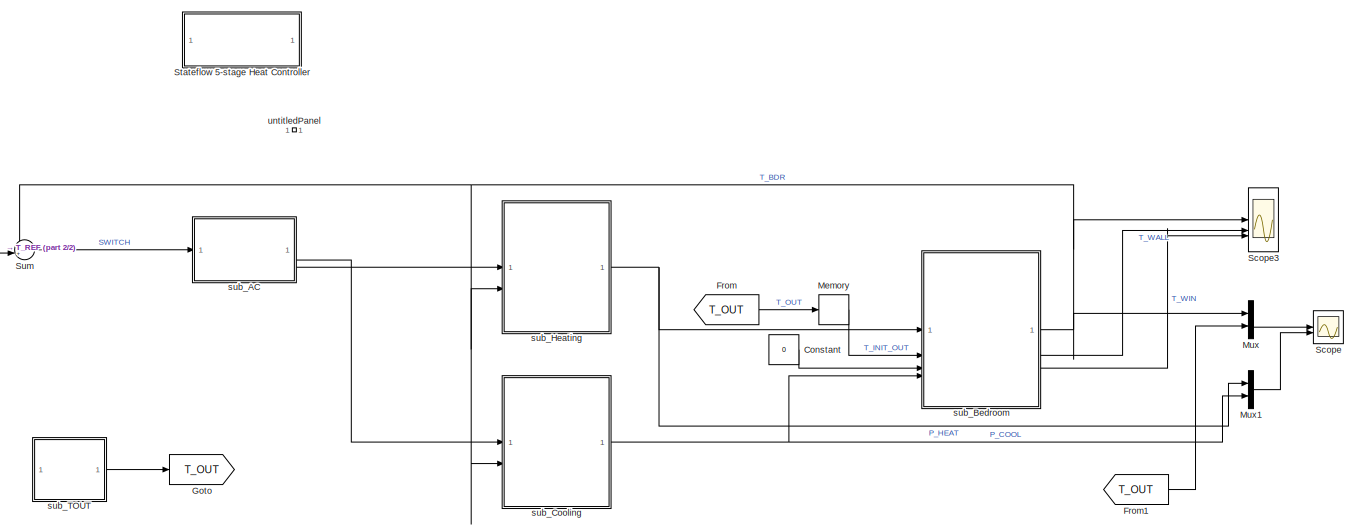
[diagram: root canvas - part 1/2, most of the canvas]
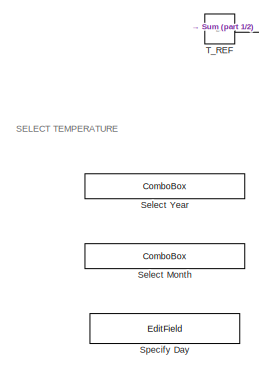
[diagram: root canvas - part 2/2, bottom left region]
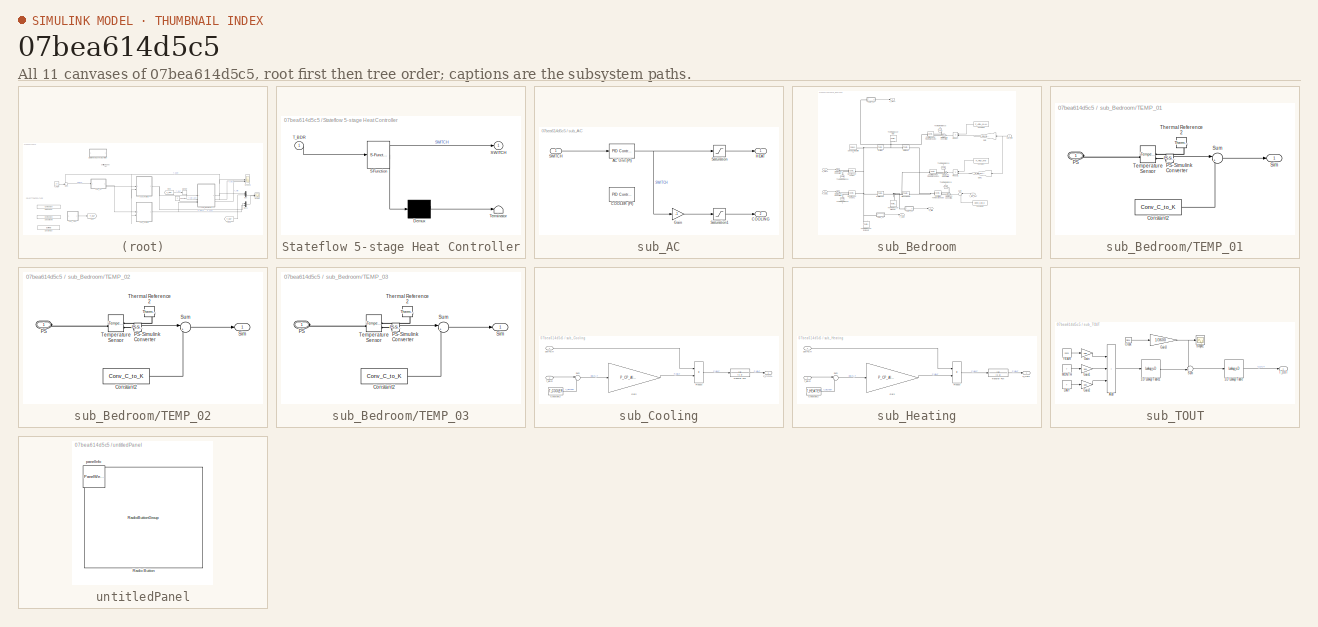
[diagram: thumbnail index - all 11 canvases of the model, root first then tree order]
MODEL slx_07bea614d5c5
KIND model
CONFIG AbsTol = auto
CONFIG EnableMultiTasking = off
CONFIG FixedStep = 1
CONFIG InitFcn = PARAMETERS;
CONFIG MaxStep = auto
CONFIG MinStep = auto
CONFIG RelTol = 1e-3
CONFIG SampleTimeConstraint = Unconstrained
CONFIG SolverName = ode5
CONFIG StartFcn = PARAMETERS;
CONFIG StartTime = 0.0
CONFIG StopTime = 3600*24*7
BLOCK [Constant] Constant
  Value = 0
BLOCK [From] From
  GotoTag = T_OUT
BLOCK [From] From1
  GotoTag = T_OUT
BLOCK [Goto] Goto
  GotoTag = T_OUT
BLOCK [Memory] Memory
  InitialCondition = T_INIT_OUT
BLOCK [Mux] Mux
  DisplayOption = bar
  Inputs = 2
BLOCK [Mux] Mux1
  DisplayOption = bar
  Inputs = 2
BLOCK [Scope] Scope
  Floating = off
  NumInputPorts = 2
  ScopeSpecificationString = Simulink.scopes.TimeScopeBlockCfg('CurrentConfiguration', extmgr.ConfigurationSet(extmgr.Configuration('Core','General UI',true),extmgr.Configuration('Core','Source UI',true),extmgr.Configuration('Sources','WiredSimulink',true),extmgr.Configuration('Visuals','Time Domain',true,'SerializedDisplays',{struct('MinYLimReal','6.8625','MaxYLimReal','32.2375','YLabelReal','','MinYLimMag','6.8625','MaxYLim...<+2086ch>
BLOCK [Scope] Scope3
  Floating = off
  NumInputPorts = 3
  ScopeSpecificationString = Simulink.scopes.TimeScopeBlockCfg('CurrentConfiguration', extmgr.ConfigurationSet(extmgr.Configuration('Core','General UI',true),extmgr.Configuration('Core','Source UI',true),extmgr.Configuration('Sources','WiredSimulink',true,'DataLoggingVariableName','ScopeData3'),extmgr.Configuration('Visuals','Time Domain',true,'SerializedDisplays',{struct('MinYLimReal','14.33567','MaxYLimReal','23.79337','YLa...<+1440ch>
BLOCK [ComboBox] Select Month
  LabelPosition = Hide
  NameLocation = top
  SelectedLabel = July
BLOCK [ComboBox] Select Year
  LabelPosition = Hide
  NameLocation = top
  SelectedLabel = 2023
BLOCK [EditField] Specify Day
  Alignment = Center
  LabelPosition = Hide
  NameLocation = top
  ShowInitialText = on
BLOCK [SubSystem] Stateflow 5-stage Heat Controller
  Commented = on
  ErrorFcn = Stateflow.Translate.translate
  PermitHierarchicalResolution = ExplicitOnly
  SFBlockType = Chart
  TreatAsAtomicUnit = on
BLOCK [Demux] Stateflow 5-stage Heat Controller/ Demux 
  Outputs = 1
BLOCK [S-Function] Stateflow 5-stage Heat Controller/ SFunction 
  EnableBusSupport = on
  FunctionName = sf_sfun
  PortCounts = [1 2]
  SFcnIsStateOwnerBlock = off
  SFunctionDeploymentMode = off
  Tag = Stateflow S-Function 1
BLOCK [Terminator] Stateflow 5-stage Heat Controller/ Terminator 
BLOCK [Outport] Stateflow 5-stage Heat Controller/SWITCH
BLOCK [Inport] Stateflow 5-stage Heat Controller/T_BDR
BLOCK [Sum] Sum
  Inputs = -+|
BLOCK [Constant] T_REF
  Value = 20
BLOCK [SubSystem] sub_AC
BLOCK [Reference] sub_AC/AC Unit (PI)  REF=slpidlib/PID Controller
  LibrarySourceBlock = simulink/Continuous/PID Controller
  SourceBlock = slpidlib/PID Controller
  SourceType = PID 1dof
BLOCK [Reference] sub_AC/COOLER (PI)  REF=slpidlib/PID Controller
  Commented = on
  LibrarySourceBlock = simulink/Continuous/PID Controller
  SourceBlock = slpidlib/PID Controller
  SourceType = PID 1dof
BLOCK [Outport] sub_AC/COOLING
  Port = 2
BLOCK [Gain] sub_AC/Gain
  Gain = -1
BLOCK [Outport] sub_AC/HEAT
BLOCK [Inport] sub_AC/SWITCH
BLOCK [Saturate] sub_AC/Saturation
  LowerLimit = 0
  UpperLimit = 1
BLOCK [Saturate] sub_AC/Saturation1
  LowerLimit = 0
  UpperLimit = 1
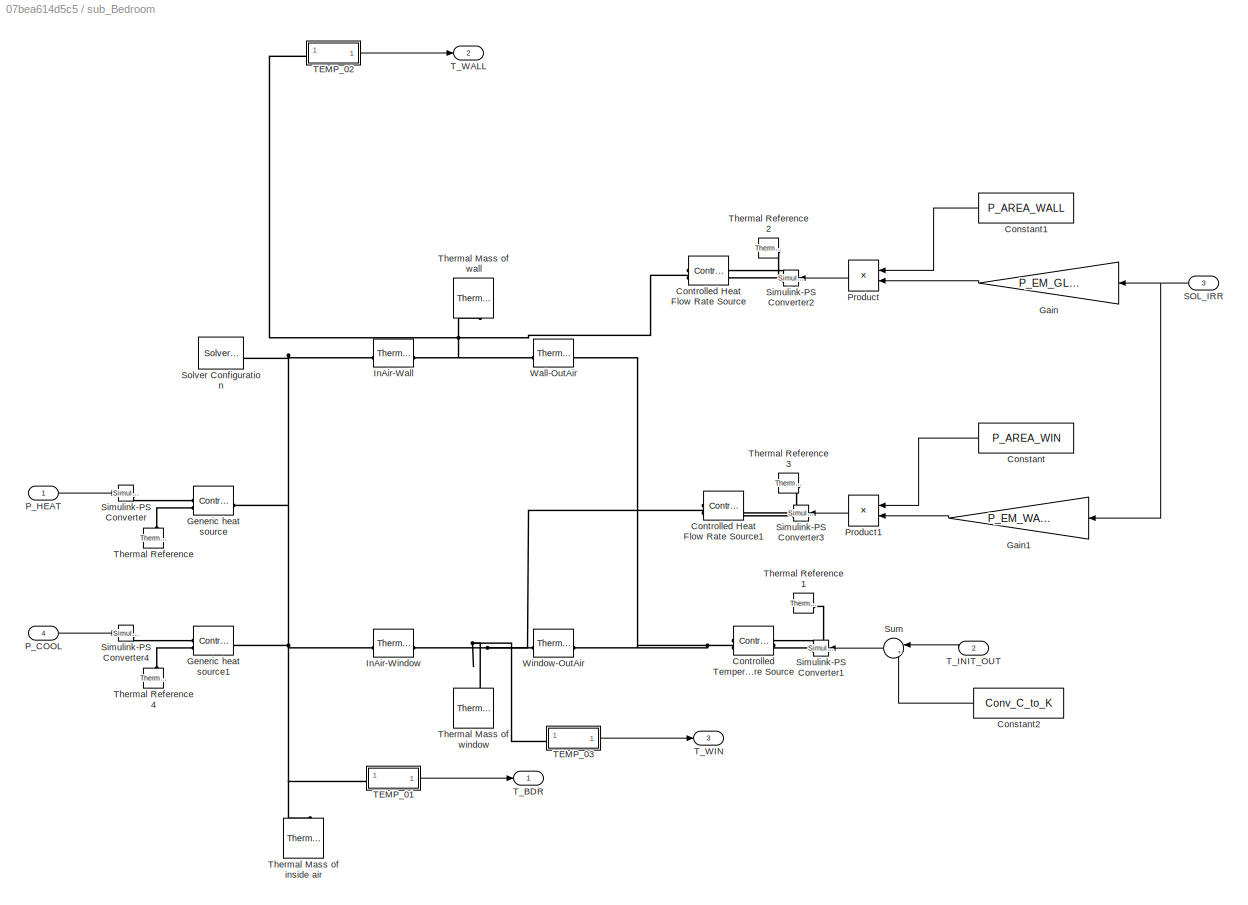
BLOCK [SubSystem] sub_Bedroom
BLOCK [Constant] sub_Bedroom/Constant
  NameLocation = top
  Value = P_AREA_WIN
BLOCK [Constant] sub_Bedroom/Constant1
  NameLocation = top
  Value = P_AREA_WALL
BLOCK [Constant] sub_Bedroom/Constant2
  NameLocation = top
  Value = Conv_C_to_K
BLOCK [Reference] sub_Bedroom/Controlled Heat Flow Rate Source  REF=fl_lib/Thermal/Thermal Sources/Controlled Heat Flow
Rate Source
  NameLocation = top
  SourceBlock = fl_lib/Thermal/Thermal Sources/Controlled Heat Flow\nRate Source
  SourceType = Controlled Heat Flow\nRate Source
BLOCK [Reference] sub_Bedroom/Controlled Heat Flow Rate Source1  REF=fl_lib/Thermal/Thermal Sources/Controlled Heat Flow
Rate Source
  NameLocation = top
  SourceBlock = fl_lib/Thermal/Thermal Sources/Controlled Heat Flow\nRate Source
  SourceType = Controlled Heat Flow\nRate Source
BLOCK [Reference] sub_Bedroom/Controlled Temperature Source  REF=fl_lib/Thermal/Thermal Sources/Controlled
Temperature Source
  NameLocation = top
  SourceBlock = fl_lib/Thermal/Thermal Sources/Controlled\nTemperature Source
  SourceType = Controlled\nTemperature Source
BLOCK [Gain] sub_Bedroom/Gain
  Gain = P_EM_GLASS
  NameLocation = top
BLOCK [Gain] sub_Bedroom/Gain1
  Gain = P_EM_WALL
  NameLocation = top
BLOCK [Reference] sub_Bedroom/Generic heat source  REF=fl_lib/Thermal/Thermal Sources/Controlled Heat Flow
Rate Source
  SourceBlock = fl_lib/Thermal/Thermal Sources/Controlled Heat Flow\nRate Source
  SourceType = Controlled Heat Flow\nRate Source
BLOCK [Reference] sub_Bedroom/Generic heat source1  REF=fl_lib/Thermal/Thermal Sources/Controlled Heat Flow
Rate Source
  SourceBlock = fl_lib/Thermal/Thermal Sources/Controlled Heat Flow\nRate Source
  SourceType = Controlled Heat Flow\nRate Source
BLOCK [Reference] sub_Bedroom/InAir-Wall  REF=fl_lib/Thermal/Thermal Elements/Thermal Resistance
  SourceBlock = fl_lib/Thermal/Thermal Elements/Thermal Resistance
  SourceType = Thermal Resistance
BLOCK [Reference] sub_Bedroom/InAir-Window  REF=fl_lib/Thermal/Thermal Elements/Thermal Resistance
  SourceBlock = fl_lib/Thermal/Thermal Elements/Thermal Resistance
  SourceType = Thermal Resistance
BLOCK [Inport] sub_Bedroom/P_COOL
  Port = 4
BLOCK [Inport] sub_Bedroom/P_HEAT
BLOCK [Product] sub_Bedroom/Product
  NameLocation = top
BLOCK [Product] sub_Bedroom/Product1
  NameLocation = top
BLOCK [Inport] sub_Bedroom/SOL_IRR
  Port = 3
BLOCK [Reference] sub_Bedroom/Simulink-PS Converter  REF=nesl_utility/Simulink-PS
Converter
  SourceBlock = nesl_utility/Simulink-PS\nConverter
  SourceType = Simulink-PS\nConverter
BLOCK [Reference] sub_Bedroom/Simulink-PS Converter1  REF=nesl_utility/Simulink-PS
Converter
  NameLocation = top
  SourceBlock = nesl_utility/Simulink-PS\nConverter
  SourceType = Simulink-PS\nConverter
BLOCK [Reference] sub_Bedroom/Simulink-PS Converter2  REF=nesl_utility/Simulink-PS
Converter
  NameLocation = top
  SourceBlock = nesl_utility/Simulink-PS\nConverter
  SourceType = Simulink-PS\nConverter
BLOCK [Reference] sub_Bedroom/Simulink-PS Converter3  REF=nesl_utility/Simulink-PS
Converter
  NameLocation = top
  SourceBlock = nesl_utility/Simulink-PS\nConverter
  SourceType = Simulink-PS\nConverter
BLOCK [Reference] sub_Bedroom/Simulink-PS Converter4  REF=nesl_utility/Simulink-PS
Converter
  SourceBlock = nesl_utility/Simulink-PS\nConverter
  SourceType = Simulink-PS\nConverter
BLOCK [Reference] sub_Bedroom/Solver Configuration  REF=nesl_utility/Solver
Configuration
  SourceBlock = nesl_utility/Solver\nConfiguration
  SourceType = Solver\nConfiguration
BLOCK [Sum] sub_Bedroom/Sum
  Inputs = |++
  NameLocation = top
BLOCK [SubSystem] sub_Bedroom/TEMP_01
BLOCK [Constant] sub_Bedroom/TEMP_01/Constant2
  Value = Conv_C_to_K
BLOCK [PMIOPort] sub_Bedroom/TEMP_01/PS
  Side = Left
BLOCK [Reference] sub_Bedroom/TEMP_01/PS-Simulink Converter  REF=nesl_utility/PS-Simulink
Converter
  SourceBlock = nesl_utility/PS-Simulink\nConverter
  SourceType = PS-Simulink\nConverter
BLOCK [Outport] sub_Bedroom/TEMP_01/Sim
BLOCK [Sum] sub_Bedroom/TEMP_01/Sum
  Inputs = |+-
BLOCK [Reference] sub_Bedroom/TEMP_01/Temperature Sensor  REF=fl_lib/Thermal/Thermal Sensors/Temperature Sensor
  SourceBlock = fl_lib/Thermal/Thermal Sensors/Temperature Sensor
  SourceType = Temperature Sensor
BLOCK [Reference] sub_Bedroom/TEMP_01/Thermal Reference2  REF=fl_lib/Thermal/Thermal Elements/Thermal Reference
  NameLocation = top
  SourceBlock = fl_lib/Thermal/Thermal Elements/Thermal Reference
  SourceType = Thermal Reference
BLOCK [SubSystem] sub_Bedroom/TEMP_02
BLOCK [Constant] sub_Bedroom/TEMP_02/Constant2
  Value = Conv_C_to_K
BLOCK [PMIOPort] sub_Bedroom/TEMP_02/PS
  Side = Left
BLOCK [Reference] sub_Bedroom/TEMP_02/PS-Simulink Converter  REF=nesl_utility/PS-Simulink
Converter
  SourceBlock = nesl_utility/PS-Simulink\nConverter
  SourceType = PS-Simulink\nConverter
BLOCK [Outport] sub_Bedroom/TEMP_02/Sim
BLOCK [Sum] sub_Bedroom/TEMP_02/Sum
  Inputs = |+-
BLOCK [Reference] sub_Bedroom/TEMP_02/Temperature Sensor  REF=fl_lib/Thermal/Thermal Sensors/Temperature Sensor
  SourceBlock = fl_lib/Thermal/Thermal Sensors/Temperature Sensor
  SourceType = Temperature Sensor
BLOCK [Reference] sub_Bedroom/TEMP_02/Thermal Reference2  REF=fl_lib/Thermal/Thermal Elements/Thermal Reference
  NameLocation = top
  SourceBlock = fl_lib/Thermal/Thermal Elements/Thermal Reference
  SourceType = Thermal Reference
BLOCK [SubSystem] sub_Bedroom/TEMP_03
BLOCK [Constant] sub_Bedroom/TEMP_03/Constant2
  Value = Conv_C_to_K
BLOCK [PMIOPort] sub_Bedroom/TEMP_03/PS
  Side = Left
BLOCK [Reference] sub_Bedroom/TEMP_03/PS-Simulink Converter  REF=nesl_utility/PS-Simulink
Converter
  SourceBlock = nesl_utility/PS-Simulink\nConverter
  SourceType = PS-Simulink\nConverter
BLOCK [Outport] sub_Bedroom/TEMP_03/Sim
BLOCK [Sum] sub_Bedroom/TEMP_03/Sum
  Inputs = |+-
BLOCK [Reference] sub_Bedroom/TEMP_03/Temperature Sensor  REF=fl_lib/Thermal/Thermal Sensors/Temperature Sensor
  SourceBlock = fl_lib/Thermal/Thermal Sensors/Temperature Sensor
  SourceType = Temperature Sensor
BLOCK [Reference] sub_Bedroom/TEMP_03/Thermal Reference2  REF=fl_lib/Thermal/Thermal Elements/Thermal Reference
  NameLocation = top
  SourceBlock = fl_lib/Thermal/Thermal Elements/Thermal Reference
  SourceType = Thermal Reference
BLOCK [Outport] sub_Bedroom/T_BDR
BLOCK [Inport] sub_Bedroom/T_INIT_OUT
  Port = 2
BLOCK [Outport] sub_Bedroom/T_WALL
  Port = 2
BLOCK [Outport] sub_Bedroom/T_WIN
  Port = 3
BLOCK [Reference] sub_Bedroom/Thermal Mass of inside air  REF=fl_lib/Thermal/Thermal Elements/Thermal Mass
  SourceBlock = fl_lib/Thermal/Thermal Elements/Thermal Mass
  SourceType = Thermal Mass
BLOCK [Reference] sub_Bedroom/Thermal Mass of wall  REF=fl_lib/Thermal/Thermal Elements/Thermal Mass
  NameLocation = top
  SourceBlock = fl_lib/Thermal/Thermal Elements/Thermal Mass
  SourceType = Thermal Mass
BLOCK [Reference] sub_Bedroom/Thermal Mass of window  REF=fl_lib/Thermal/Thermal Elements/Thermal Mass
  SourceBlock = fl_lib/Thermal/Thermal Elements/Thermal Mass
  SourceType = Thermal Mass
BLOCK [Reference] sub_Bedroom/Thermal Reference  REF=fl_lib/Thermal/Thermal Elements/Thermal Reference
  NameLocation = right
  SourceBlock = fl_lib/Thermal/Thermal Elements/Thermal Reference
  SourceType = Thermal Reference
BLOCK [Reference] sub_Bedroom/Thermal Reference1  REF=fl_lib/Thermal/Thermal Elements/Thermal Reference
  NameLocation = top
  SourceBlock = fl_lib/Thermal/Thermal Elements/Thermal Reference
  SourceType = Thermal Reference
BLOCK [Reference] sub_Bedroom/Thermal Reference2  REF=fl_lib/Thermal/Thermal Elements/Thermal Reference
  NameLocation = top
  SourceBlock = fl_lib/Thermal/Thermal Elements/Thermal Reference
  SourceType = Thermal Reference
BLOCK [Reference] sub_Bedroom/Thermal Reference3  REF=fl_lib/Thermal/Thermal Elements/Thermal Reference
  NameLocation = top
  SourceBlock = fl_lib/Thermal/Thermal Elements/Thermal Reference
  SourceType = Thermal Reference
BLOCK [Reference] sub_Bedroom/Thermal Reference4  REF=fl_lib/Thermal/Thermal Elements/Thermal Reference
  NameLocation = right
  SourceBlock = fl_lib/Thermal/Thermal Elements/Thermal Reference
  SourceType = Thermal Reference
BLOCK [Reference] sub_Bedroom/Wall-OutAir  REF=fl_lib/Thermal/Thermal Elements/Thermal Resistance
  SourceBlock = fl_lib/Thermal/Thermal Elements/Thermal Resistance
  SourceType = Thermal Resistance
BLOCK [Reference] sub_Bedroom/Window-OutAir  REF=fl_lib/Thermal/Thermal Elements/Thermal Resistance
  SourceBlock = fl_lib/Thermal/Thermal Elements/Thermal Resistance
  SourceType = Thermal Resistance
BLOCK [SubSystem] sub_Cooling
BLOCK [Constant] sub_Cooling/Constant2
  Value = T_COOLER
BLOCK [Gain] sub_Cooling/Gain
  Gain = P_CP_AIR*P_M_AIR_FLOW
BLOCK [Outport] sub_Cooling/P_COOL
BLOCK [Product] sub_Cooling/Product
BLOCK [Inport] sub_Cooling/SWITCH
BLOCK [Sum] sub_Cooling/Sum
  Inputs = |-+
BLOCK [Inport] sub_Cooling/T_BDR
  Port = 2
BLOCK [TransferFcn] sub_Cooling/Transfer Fcn
  Denominator = [1 1]
BLOCK [SubSystem] sub_Heating
BLOCK [Constant] sub_Heating/Constant2
  Value = T_HEATER
BLOCK [Gain] sub_Heating/Gain
  Gain = P_CP_AIR*P_M_AIR_FLOW
BLOCK [Outport] sub_Heating/P_HEAT
BLOCK [Product] sub_Heating/Product
BLOCK [Inport] sub_Heating/SWITCH
BLOCK [Sum] sub_Heating/Sum
  Inputs = |-+
BLOCK [Inport] sub_Heating/T_BDR
  Port = 2
BLOCK [TransferFcn] sub_Heating/Transfer Fcn
  Denominator = [1 1]
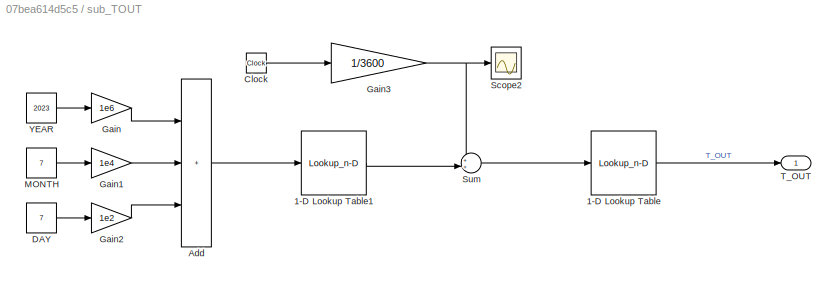
BLOCK [SubSystem] sub_TOUT
BLOCK [Lookup_n-D] sub_TOUT/1-D Lookup Table
  BreakpointsForDimension1 = TBL_TEMP.DATE_sec
  InputPortMap = u0
  InternalRulePriority = Speed
  NumberOfTableDimensions = 1
  RndMeth = Simplest
  Table = TBL_TEMP.T_C
BLOCK [Lookup_n-D] sub_TOUT/1-D Lookup Table1
  BreakpointsForDimension1 = TBL_TEMP.DATE_yyyymmddhh
  InputPortMap = u0
  InternalRulePriority = Speed
  NumberOfTableDimensions = 1
  RndMeth = Simplest
  Table = TBL_TEMP.DATE_sec
BLOCK [Sum] sub_TOUT/Add
  IconShape = rectangular
  Inputs = +++
BLOCK [Clock] sub_TOUT/Clock
BLOCK [Constant] sub_TOUT/DAY
  Value = 7
BLOCK [Gain] sub_TOUT/Gain
  Gain = 1e6
BLOCK [Gain] sub_TOUT/Gain1
  Gain = 1e4
BLOCK [Gain] sub_TOUT/Gain2
  Gain = 1e2
BLOCK [Gain] sub_TOUT/Gain3
  Gain = 1/3600
BLOCK [Constant] sub_TOUT/MONTH
  Value = 7
BLOCK [Scope] sub_TOUT/Scope2
  Floating = off
  NumInputPorts = 1
  ScopeSpecificationString = Simulink.scopes.TimeScopeBlockCfg('CurrentConfiguration', extmgr.ConfigurationSet(extmgr.Configuration('Core','General UI',true),extmgr.Configuration('Core','Source UI',true),extmgr.Configuration('Sources','WiredSimulink',true,'DataLoggingVariableName','ScopeData1'),extmgr.Configuration('Visuals','Time Domain',true,'SerializedDisplays',{struct('MinYLimReal','-1.50003','MaxYLimReal','13.50031','YLa...<+1373ch>
BLOCK [Sum] sub_TOUT/Sum
  Inputs = ++|
BLOCK [Outport] sub_TOUT/T_OUT
BLOCK [Constant] sub_TOUT/YEAR
  Value = 2023
BLOCK [SubSystem] untitledPanel
  IsWebBlockPanel = on
  Tag = HiddenForWebPanel
BLOCK [RadioButtonGroup] untitledPanel/Radio Button
  ButtonGroupName = Group
  PanelInfo = {"addnFilesFolder":"","height":230,"includeDebugPackages":false,"left":18,"outputFolder":"","panelId":"panelId-a10107d6-1e7d-451d-956e-0df6eada92c1","popoutMode":"","standaloneTitle":"","top":18,"type":"panelChild","version":"2019b","width":270,"zIndex":1500002}
  SelectedLabel = Label3
  Tag = HiddenForWebPanel
BLOCK [PanelWebBlock] untitledPanel/panelInfo
  PanelInfo = {"addnFilesFolder":"","compacted":false,"height":270,"includeDebugPackages":false,"isActiveTab":true,"left":296,"name":"Panel","outputFolder":"","panelId":"panelId-a10107d6-1e7d-451d-956e-0df6eada92c1","popoutData":{"height":334,"left":361,"maximized":false,"top":306,"width":324},"popoutMode":"windowHidden","standaloneTitle":"","tabIndex":0,"tabbedSetId":"tabbedSet8433950298","top":135,"type":"pan...<+66ch>
  Tag = HiddenForWebPanel
ANNOTATION (root): SELECT TEMPERATURE
LINE Constant:1 -> sub_Bedroom:3
LINE From1:1 -> Mux:2
LINE From:1 -> Memory:1
LINE Memory:1 -> sub_Bedroom:2
LINE Mux1:1 -> Scope:2
LINE Mux:1 -> Scope:1
LINE Sum:1 -> sub_AC:1
LINE T_REF:1 -> Sum:2
NET sub_AC/AC Unit (PI):1 -> sub_AC/Gain:1, sub_AC/Saturation:1
LINE sub_AC/Gain:1 -> sub_AC/Saturation1:1
LINE sub_AC/SWITCH:1 -> sub_AC/AC Unit (PI):1
LINE sub_AC/Saturation1:1 -> sub_AC/COOLING:1
LINE sub_AC/Saturation:1 -> sub_AC/HEAT:1
LINE sub_AC:1 -> sub_Heating:1
LINE sub_AC:2 -> sub_Cooling:1
LINE sub_Bedroom/Constant1:1 -> sub_Bedroom/Product:1
LINE sub_Bedroom/Constant2:1 -> sub_Bedroom/Sum:2
LINE sub_Bedroom/Constant:1 -> sub_Bedroom/Product1:1
LINE sub_Bedroom/Gain1:1 -> sub_Bedroom/Product1:2
LINE sub_Bedroom/Gain:1 -> sub_Bedroom/Product:2
LINE sub_Bedroom/P_COOL:1 -> sub_Bedroom/Simulink-PS Converter4:1
LINE sub_Bedroom/P_HEAT:1 -> sub_Bedroom/Simulink-PS Converter:1
LINE sub_Bedroom/Product1:1 -> sub_Bedroom/Simulink-PS Converter3:1
LINE sub_Bedroom/Product:1 -> sub_Bedroom/Simulink-PS Converter2:1
NET sub_Bedroom/SOL_IRR:1 -> sub_Bedroom/Gain1:1, sub_Bedroom/Gain:1
LINE sub_Bedroom/Sum:1 -> sub_Bedroom/Simulink-PS Converter1:1
LINE sub_Bedroom/TEMP_01/Constant2:1 -> sub_Bedroom/TEMP_01/Sum:2
LINE sub_Bedroom/TEMP_01/PS-Simulink Converter:1 -> sub_Bedroom/TEMP_01/Sum:1
LINE sub_Bedroom/TEMP_01/Sum:1 -> sub_Bedroom/TEMP_01/Sim:1
LINE sub_Bedroom/TEMP_01:1 -> sub_Bedroom/T_BDR:1
LINE sub_Bedroom/TEMP_02/Constant2:1 -> sub_Bedroom/TEMP_02/Sum:2
LINE sub_Bedroom/TEMP_02/PS-Simulink Converter:1 -> sub_Bedroom/TEMP_02/Sum:1
LINE sub_Bedroom/TEMP_02/Sum:1 -> sub_Bedroom/TEMP_02/Sim:1
LINE sub_Bedroom/TEMP_02:1 -> sub_Bedroom/T_WALL:1
LINE sub_Bedroom/TEMP_03/Constant2:1 -> sub_Bedroom/TEMP_03/Sum:2
LINE sub_Bedroom/TEMP_03/PS-Simulink Converter:1 -> sub_Bedroom/TEMP_03/Sum:1
LINE sub_Bedroom/TEMP_03/Sum:1 -> sub_Bedroom/TEMP_03/Sim:1
LINE sub_Bedroom/TEMP_03:1 -> sub_Bedroom/T_WIN:1
LINE sub_Bedroom/T_INIT_OUT:1 -> sub_Bedroom/Sum:1
NET sub_Bedroom:1 -> Mux:1, Scope3:1, Sum:1, sub_Cooling:2, sub_Heating:2
LINE sub_Bedroom:2 -> Scope3:2
LINE sub_Bedroom:3 -> Scope3:3
LINE sub_Cooling/Constant2:1 -> sub_Cooling/Sum:2
LINE sub_Cooling/Gain:1 -> sub_Cooling/Product:2
LINE sub_Cooling/Product:1 -> sub_Cooling/Transfer Fcn:1
LINE sub_Cooling/SWITCH:1 -> sub_Cooling/Product:1
LINE sub_Cooling/Sum:1 -> sub_Cooling/Gain:1
LINE sub_Cooling/T_BDR:1 -> sub_Cooling/Sum:1
LINE sub_Cooling/Transfer Fcn:1 -> sub_Cooling/P_COOL:1
NET sub_Cooling:1 -> Mux1:2, sub_Bedroom:4
LINE sub_Heating/Constant2:1 -> sub_Heating/Sum:2
LINE sub_Heating/Gain:1 -> sub_Heating/Product:2
LINE sub_Heating/Product:1 -> sub_Heating/Transfer Fcn:1
LINE sub_Heating/SWITCH:1 -> sub_Heating/Product:1
LINE sub_Heating/Sum:1 -> sub_Heating/Gain:1
LINE sub_Heating/T_BDR:1 -> sub_Heating/Sum:1
LINE sub_Heating/Transfer Fcn:1 -> sub_Heating/P_HEAT:1
NET sub_Heating:1 -> Mux1:1, sub_Bedroom:1
LINE sub_TOUT/1-D Lookup Table1:1 -> sub_TOUT/Sum:2
LINE sub_TOUT/1-D Lookup Table:1 -> sub_TOUT/T_OUT:1
LINE sub_TOUT/Add:1 -> sub_TOUT/1-D Lookup Table1:1
LINE sub_TOUT/Clock:1 -> sub_TOUT/Gain3:1
LINE sub_TOUT/DAY:1 -> sub_TOUT/Gain2:1
LINE sub_TOUT/Gain1:1 -> sub_TOUT/Add:2
LINE sub_TOUT/Gain2:1 -> sub_TOUT/Add:3
NET sub_TOUT/Gain3:1 -> sub_TOUT/Scope2:1, sub_TOUT/Sum:1
LINE sub_TOUT/Gain:1 -> sub_TOUT/Add:1
LINE sub_TOUT/MONTH:1 -> sub_TOUT/Gain1:1
LINE sub_TOUT/Sum:1 -> sub_TOUT/1-D Lookup Table:1
LINE sub_TOUT/YEAR:1 -> sub_TOUT/Gain:1
LINE sub_TOUT:1 -> Goto:1
PNET net1: sub_Bedroom/Controlled Heat Flow Rate Source1:LConn1 -- sub_Bedroom/InAir-Window:RConn1 -- sub_Bedroom/TEMP_03:LConn1 -- sub_Bedroom/Thermal Mass of window:LConn1 -- sub_Bedroom/Window-OutAir:LConn1
PLINE sub_Bedroom/Controlled Heat Flow Rate Source1:RConn1 -- sub_Bedroom/Simulink-PS Converter3:RConn1
PLINE sub_Bedroom/Controlled Heat Flow Rate Source1:RConn2 -- sub_Bedroom/Thermal Reference3:LConn1
PNET net2: sub_Bedroom/Controlled Heat Flow Rate Source:LConn1 -- sub_Bedroom/InAir-Wall:RConn1 -- sub_Bedroom/TEMP_02:LConn1 -- sub_Bedroom/Thermal Mass of wall:LConn1 -- sub_Bedroom/Wall-OutAir:LConn1
PLINE sub_Bedroom/Controlled Heat Flow Rate Source:RConn1 -- sub_Bedroom/Simulink-PS Converter2:RConn1
PLINE sub_Bedroom/Controlled Heat Flow Rate Source:RConn2 -- sub_Bedroom/Thermal Reference2:LConn1
PNET net3: sub_Bedroom/Controlled Temperature Source:LConn1 -- sub_Bedroom/Wall-OutAir:RConn1 -- sub_Bedroom/Window-OutAir:RConn1
PLINE sub_Bedroom/Controlled Temperature Source:RConn1 -- sub_Bedroom/Simulink-PS Converter1:RConn1
PLINE sub_Bedroom/Controlled Temperature Source:RConn2 -- sub_Bedroom/Thermal Reference1:LConn1
PNET net4: sub_Bedroom/Generic heat source1:LConn1 -- sub_Bedroom/Generic heat source:LConn1 -- sub_Bedroom/InAir-Wall:LConn1 -- sub_Bedroom/InAir-Window:LConn1 -- sub_Bedroom/Solver Configuration:RConn1 -- sub_Bedroom/TEMP_01:LConn1 -- sub_Bedroom/Thermal Mass of inside air:LConn1
PLINE sub_Bedroom/Generic heat source1:RConn1 -- sub_Bedroom/Simulink-PS Converter4:RConn1
PLINE sub_Bedroom/Generic heat source1:RConn2 -- sub_Bedroom/Thermal Reference4:LConn1
PLINE sub_Bedroom/Generic heat source:RConn1 -- sub_Bedroom/Simulink-PS Converter:RConn1
PLINE sub_Bedroom/Generic heat source:RConn2 -- sub_Bedroom/Thermal Reference:LConn1
PLINE sub_Bedroom/TEMP_01/PS-Simulink Converter:LConn1 -- sub_Bedroom/TEMP_01/Temperature Sensor:RConn2
PLINE sub_Bedroom/TEMP_01/PS:RConn1 -- sub_Bedroom/TEMP_01/Temperature Sensor:LConn1
PLINE sub_Bedroom/TEMP_01/Temperature Sensor:RConn1 -- sub_Bedroom/TEMP_01/Thermal Reference2:LConn1
PLINE sub_Bedroom/TEMP_02/PS-Simulink Converter:LConn1 -- sub_Bedroom/TEMP_02/Temperature Sensor:RConn2
PLINE sub_Bedroom/TEMP_02/PS:RConn1 -- sub_Bedroom/TEMP_02/Temperature Sensor:LConn1
PLINE sub_Bedroom/TEMP_02/Temperature Sensor:RConn1 -- sub_Bedroom/TEMP_02/Thermal Reference2:LConn1
PLINE sub_Bedroom/TEMP_03/PS-Simulink Converter:LConn1 -- sub_Bedroom/TEMP_03/Temperature Sensor:RConn2
PLINE sub_Bedroom/TEMP_03/PS:RConn1 -- sub_Bedroom/TEMP_03/Temperature Sensor:LConn1
PLINE sub_Bedroom/TEMP_03/Temperature Sensor:RConn1 -- sub_Bedroom/TEMP_03/Thermal Reference2:LConn1
note: NET lines group one-source signal fan-out (src -> all destinations, sorted); 1:1 wires keep LINE; PNET lines group multi-terminal physical nets as a canonical sorted terminal list (undirected conserving connections); 2-terminal nets keep the pairwise PLINE form
CHART Stateflow 5-stage
Heat Controller states=5 transitions=9
  STATE_LABEL 'Off\nentry:\nSWITCH = 0;'
  STATE_LABEL 'Low\nentry:\nSWITCH = 0.25;'
  STATE_LABEL 'Medium\nentry:\nSWITCH = 0.5;'
  STATE_LABEL 'High\nentry:\nSWITCH = 0.75;'
  STATE_LABEL 'Full\nentry:\nSWITCH = 1;'
CHART  states=0 transitions=0
